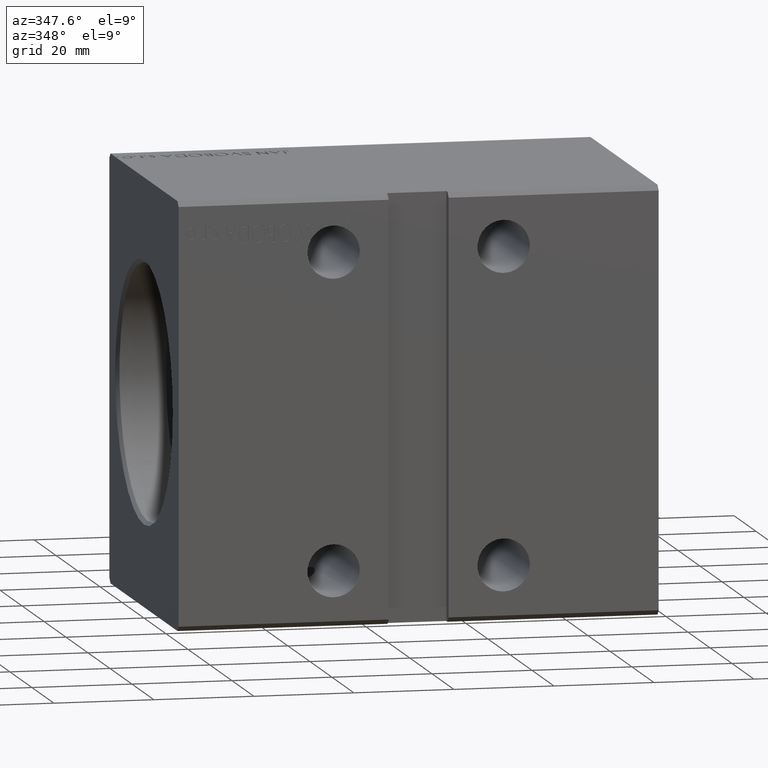
[diagram: clean part render]
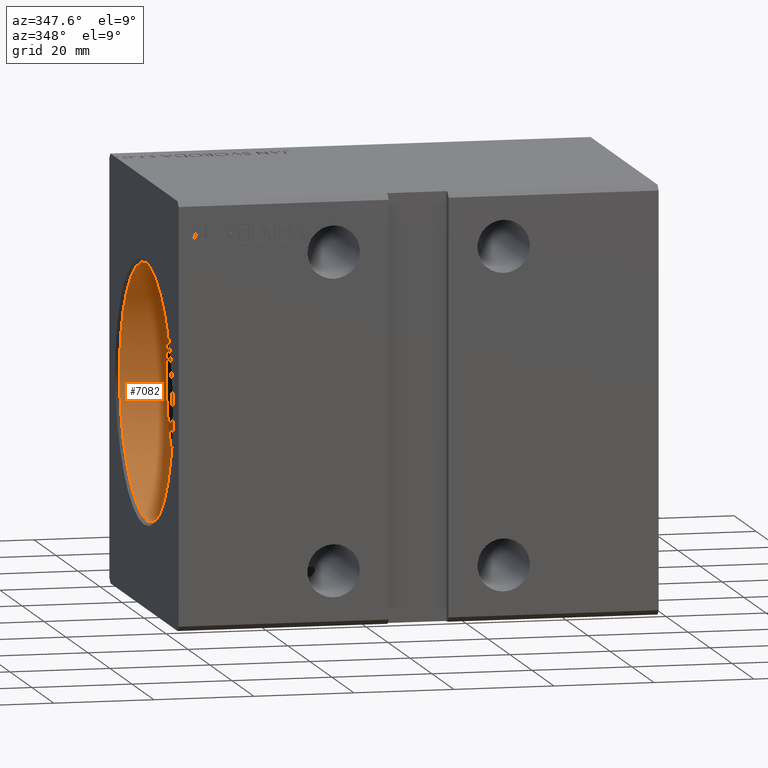
[diagram: same view with one face highlighted and labeled with its STEP entity id]
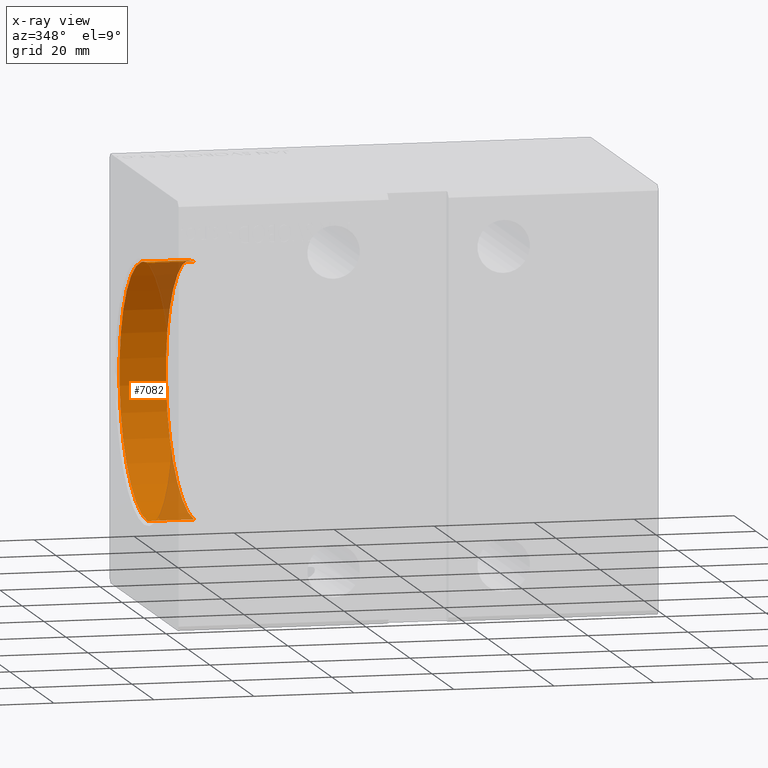
[diagram: x-ray of the same camera — body ghosted, the highlighted face saturated]
A machine part, auxiliary view. The second image highlights one B-rep face of the part: STEP entity #7082.
The next image is the same camera in x-ray: the body ghosted, the highlighted face saturated — about 15% of this face is hidden behind the body in this view.
In plain terms, the highlighted cylindrical surface (partial cylindrical patch) has radius 25.5 mm, axis along (-1, -0, -0).
Its self-contained STEP definition (entity closure, byte-faithful):
#36 = AXIS2_PLACEMENT_3D ( 'NONE', #24518, #27914, #24101 ) ;
#3251 = CARTESIAN_POINT ( 'NONE',  ( 10.00000000000000000, 0.000000000000000000, 0.000000000000000000 ) ) ;
#3433 = EDGE_CURVE ( 'NONE', #38888, #40711, #4783, .T. ) ;
#3707 = VERTEX_POINT ( 'NONE', #33631 ) ;
#3898 = CARTESIAN_POINT ( 'NONE',  ( 10.00000000000000000, 3.122849337825750222E-15, -25.50000000000000000 ) ) ;
#4315 = DIRECTION ( 'NONE',  ( -1.000000000000000000, -0.000000000000000000, -0.000000000000000000 ) ) ;
#4783 = CIRCLE ( 'NONE', #36, 25.50000000000000000 ) ;
#7082 = ADVANCED_FACE ( 'NONE', ( #35819 ), #26033, .F. ) ;
#7083 = LINE ( 'NONE', #3898, #36310 ) ;
#7090 = DIRECTION ( 'NONE',  ( -1.000000000000000000, 0.000000000000000000, 0.000000000000000000 ) ) ;
#7450 = ORIENTED_EDGE ( 'NONE', *, *, #33983, .F. ) ;
#8513 = ORIENTED_EDGE ( 'NONE', *, *, #3433, .T. ) ;
#11875 = VERTEX_POINT ( 'NONE', #18371 ) ;
#14314 = ORIENTED_EDGE ( 'NONE', *, *, #31146, .T. ) ;
#18371 = CARTESIAN_POINT ( 'NONE',  ( 10.00000000000000000, 0.000000000000000000, 25.50000000000000000 ) ) ;
#19010 = DIRECTION ( 'NONE',  ( -1.000000000000000000, -0.000000000000000000, -0.000000000000000000 ) ) ;
#19718 = DIRECTION ( 'NONE',  ( -1.000000000000000000, -0.000000000000000000, -0.000000000000000000 ) ) ;
#19910 = CIRCLE ( 'NONE', #36189, 25.50000000000000000 ) ;
#23904 = VECTOR ( 'NONE', #19718, 1000.000000000000000 ) ;
#24101 = DIRECTION ( 'NONE',  ( 0.000000000000000000, 0.000000000000000000, -1.000000000000000000 ) ) ;
#24518 = CARTESIAN_POINT ( 'NONE',  ( 0.6999999999999784173, 0.000000000000000000, 0.000000000000000000 ) ) ;
#26033 = CYLINDRICAL_SURFACE ( 'NONE', #34222, 25.50000000000000000 ) ;
#27914 = DIRECTION ( 'NONE',  ( -1.000000000000000000, 0.000000000000000000, 0.000000000000000000 ) ) ;
#29002 = DIRECTION ( 'NONE',  ( 0.000000000000000000, 0.000000000000000000, 1.000000000000000000 ) ) ;
#29073 = CARTESIAN_POINT ( 'NONE',  ( 10.00000000000000000, 0.000000000000000000, 25.50000000000000000 ) ) ;
#31146 = EDGE_CURVE ( 'NONE', #11875, #38888, #32687, .T. ) ;
#32687 = LINE ( 'NONE', #29073, #23904 ) ;
#33068 = CARTESIAN_POINT ( 'NONE',  ( 10.00000000000000000, 0.000000000000000000, 0.000000000000000000 ) ) ;
#33631 = CARTESIAN_POINT ( 'NONE',  ( 10.00000000000000000, 3.122849337825750222E-15, -25.50000000000000000 ) ) ;
#33983 = EDGE_CURVE ( 'NONE', #11875, #3707, #19910, .T. ) ;
#34158 = CARTESIAN_POINT ( 'NONE',  ( 0.6999999999999784173, 0.000000000000000000, 25.50000000000000000 ) ) ;
#34222 = AXIS2_PLACEMENT_3D ( 'NONE', #3251, #19010, #29002 ) ;
#35819 = FACE_OUTER_BOUND ( 'NONE', #38686, .T. ) ;
#36189 = AXIS2_PLACEMENT_3D ( 'NONE', #33068, #7090, #39651 ) ;
#36310 = VECTOR ( 'NONE', #4315, 1000.000000000000000 ) ;
#36936 = CARTESIAN_POINT ( 'NONE',  ( 0.6999999999999784173, 3.122849337825750222E-15, -25.50000000000000000 ) ) ;
#38033 = EDGE_CURVE ( 'NONE', #3707, #40711, #7083, .T. ) ;
#38686 = EDGE_LOOP ( 'NONE', ( #40901, #7450, #14314, #8513 ) ) ;
#38888 = VERTEX_POINT ( 'NONE', #34158 ) ;
#39651 = DIRECTION ( 'NONE',  ( 0.000000000000000000, 0.000000000000000000, 1.000000000000000000 ) ) ;
#40711 = VERTEX_POINT ( 'NONE', #36936 ) ;
#40901 = ORIENTED_EDGE ( 'NONE', *, *, #38033, .F. ) ;